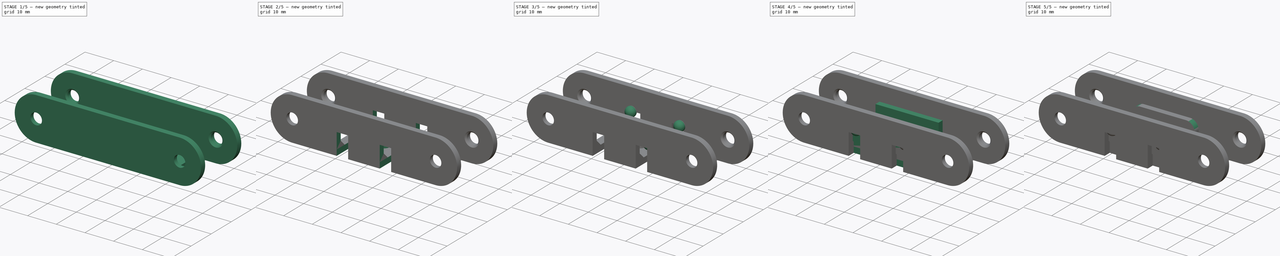
[diagram: build sequence overview — one tinted view per stage of 5, left to right]
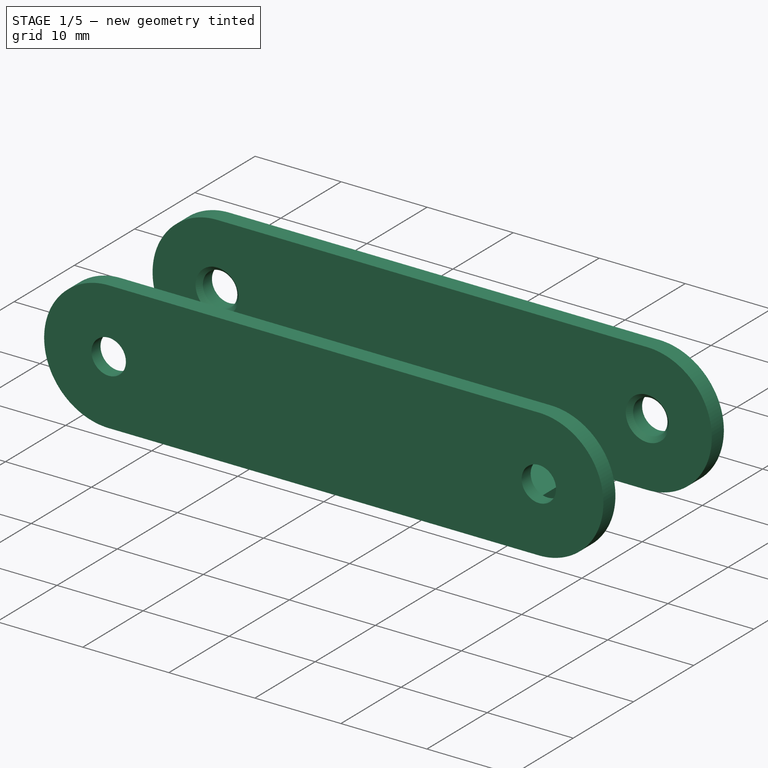
[diagram: stage 1 of 5 — iso view after this stage's code; geometry added in this stage tinted green]
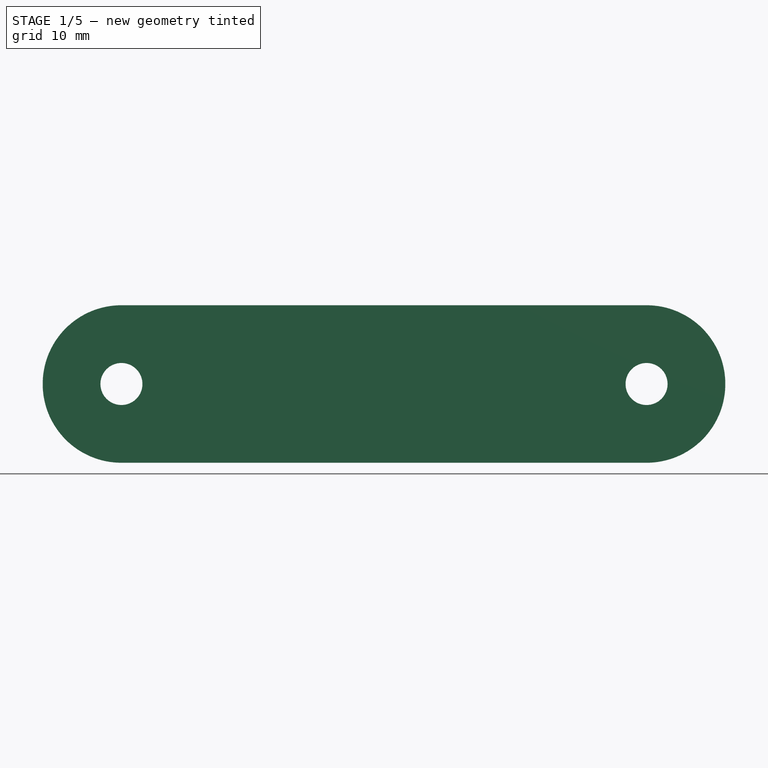
[diagram: stage 1 of 5 — front view after this stage's code; geometry added in this stage tinted green]
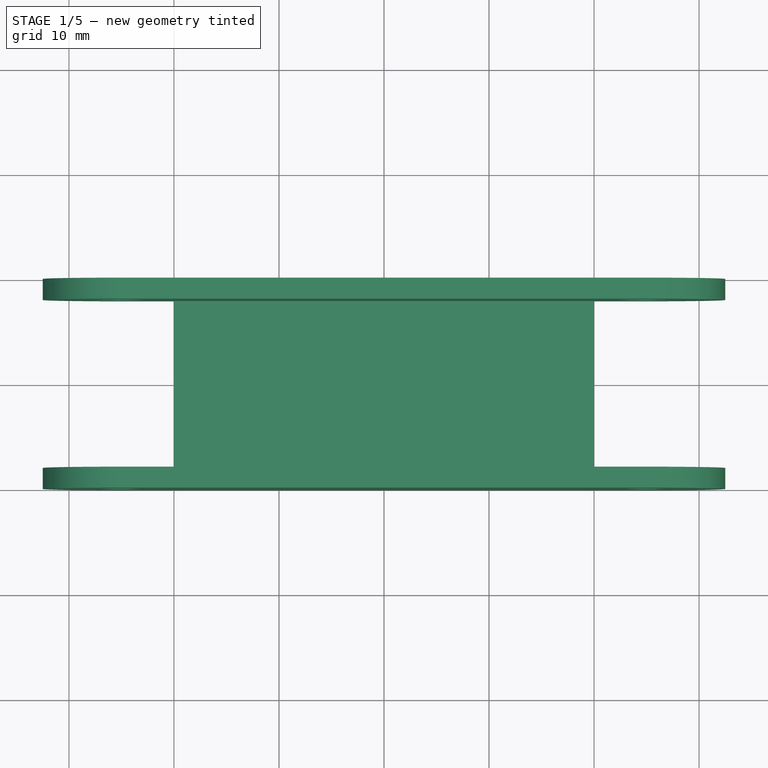
[diagram: stage 1 of 5 — top view after this stage's code; geometry added in this stage tinted green]
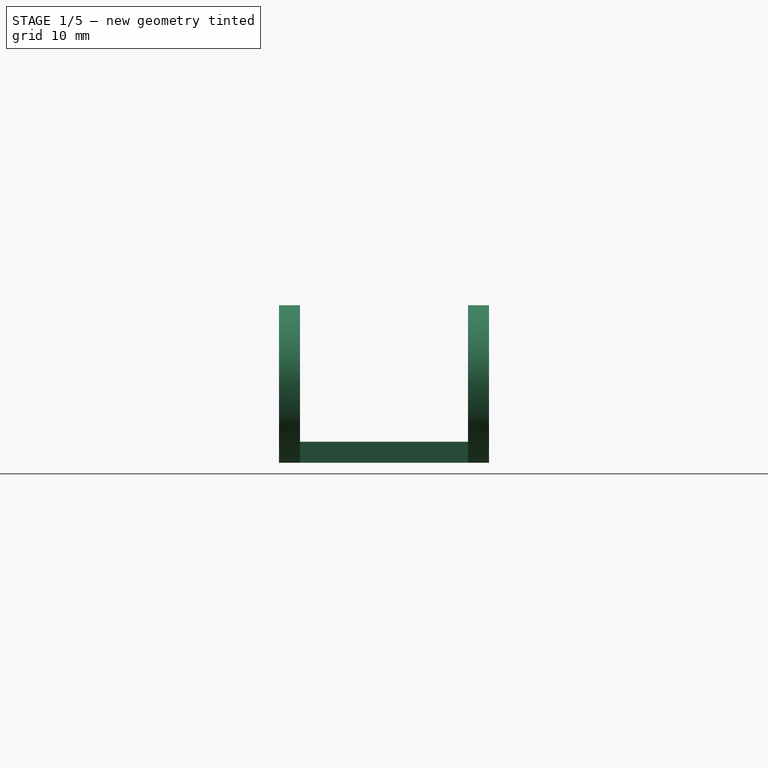
[diagram: stage 1 of 5 — right view after this stage's code; geometry added in this stage tinted green]
FCSTD DOCUMENT  (FreeCAD 0.16R6138 (Git))
Label: pentographeV2
License: All rights reserved
LicenseURL: http://fr.wikipedia.org/wiki/<copyright redacted>
objects: Sketcher::SketchObject×9, PartDesign::Pad×5, PartDesign::Pocket×4, Part::Sphere×4, Part::MultiFuse×4, PartDesign::Chamfer×3, PartDesign::Fillet×2, App::DocumentObjectGroup×2
note: 40 computed .brp shape members not serialized (recipe doc carries the construction recipe); baked Part::Feature solids carry a one-line shape summary decoded from their .brp

FEATURE [Sketcher::SketchObject] Sketch
  sketch-geometry (4):
    g0: LineSegment StartX=-20 StartY=10 StartZ=0 EndX=20 EndY=10 EndZ=0
    g1: LineSegment StartX=20 StartY=10 StartZ=0 EndX=20 EndY=-10 EndZ=0
    g2: LineSegment StartX=20 StartY=-10 StartZ=0 EndX=-20 EndY=-10 EndZ=0
    g3: LineSegment StartX=-20 StartY=-10 StartZ=0 EndX=-20 EndY=10 EndZ=0
  constraints (12):
    c: Coincident(g0,g1)
    c: Coincident(g1,g2)
    c: Coincident(g2,g3)
    c: Coincident(g3,g0)
    c: Horizontal(g0)
    c: Horizontal(g2)
    c: Vertical(g1)
    c: Vertical(g3)
    c: Symmetric(g0,g1,g-1)
    c: Symmetric(g0,g0,g-2)
    c: Distance(g0) = 40
    c: Distance(g1) = 20
FEATURE [PartDesign::Pad] Pad  label="Pento001"
  Length = 2
  Length2 = 100
  Sketch = -> Sketch
  Type = 0
FEATURE [Sketcher::SketchObject] Sketch001
  Placement = pos=(0,-10,0) rot=(1,0,0;1.5708rad)
  Support = -> Pad [Face3]
  sketch-geometry (6):
    g0: ArcOfCircle CenterX=-25 CenterY=7.5 CenterZ=0 NormalX=0 NormalY=0 NormalZ=1 Radius=7.5 StartAngle=1.5708 EndAngle=4.71239
    g1: ArcOfCircle CenterX=25 CenterY=7.5 CenterZ=0 NormalX=0 NormalY=0 NormalZ=1 Radius=7.5 StartAngle=4.71239 EndAngle=7.85398
    g2: LineSegment StartX=-25 StartY=0 StartZ=0 EndX=25 EndY=0 EndZ=0
    g3: LineSegment StartX=-25 StartY=15 StartZ=0 EndX=25 EndY=15 EndZ=0
    g4: Circle CenterX=-25 CenterY=7.5 CenterZ=0 NormalX=0 NormalY=0 NormalZ=1 Radius=2
    g5: Circle CenterX=25 CenterY=7.5 CenterZ=0 NormalX=0 NormalY=0 NormalZ=1 Radius=2
  constraints (14):
    c: Tangent(g0,g3) = 1.5708
    c: Tangent(g0,g2) = -1.5708
    c: Tangent(g2,g1) = -1.5708
    c: Tangent(g3,g1) = 1.5708
    c: Horizontal(g2)
    c: Equal(g0,g1)
    c: PointOnObject(g0,g-1)
    c: Symmetric(g0,g1,g-2)
    c: Radius(g1) = 7.5
    c: Distance(g3) = 50
    c: Coincident(g5,g1)
    c: Coincident(g4,g0)
    c: Radius(g5) = 2
    c: Equal(g5,g4)
FEATURE [PartDesign::Pad] Pad001  label="Pad005"
  Length = 2
  Length2 = 100
  Reversed = true
  Sketch = -> Sketch001
  Type = 0
FEATURE [Sketcher::SketchObject] Sketch002
  Placement = pos=(0,10,0) rot=(0,0.707107,0.707107;3.14159rad)
  Support = -> Pad001 [Face1]
  sketch-geometry (6):
    g0: ArcOfCircle CenterX=-25 CenterY=7.5 CenterZ=0 NormalX=0 NormalY=0 NormalZ=1 Radius=7.5 StartAngle=1.5708 EndAngle=4.71239
    g1: ArcOfCircle CenterX=25 CenterY=7.5 CenterZ=0 NormalX=0 NormalY=0 NormalZ=1 Radius=7.5 StartAngle=4.71239 EndAngle=7.85398
    g2: LineSegment StartX=-25 StartY=0 StartZ=0 EndX=25 EndY=0 EndZ=0
    g3: LineSegment StartX=-25 StartY=15 StartZ=0 EndX=25 EndY=15 EndZ=0
    g4: Circle CenterX=-25 CenterY=7.5 CenterZ=0 NormalX=0 NormalY=0 NormalZ=1 Radius=2
    g5: Circle CenterX=25 CenterY=7.5 CenterZ=0 NormalX=0 NormalY=0 NormalZ=1 Radius=2
  constraints (14):
    c: Tangent(g0,g3) = 1.5708
    c: Tangent(g0,g2) = -1.5708
    c: Tangent(g2,g1) = -1.5708
    c: Tangent(g3,g1) = 1.5708
    c: Horizontal(g2)
    c: Equal(g0,g1)
    c: PointOnObject(g1,g-1)
    c: Radius(g0) = 7.5
    c: Symmetric(g1,g0,g-2)
    c: Distance(g3) = 50
    c: Coincident(g5,g1)
    c: Coincident(g4,g0)
    c: Radius(g5) = 2
    c: Equal(g5,g4)
FEATURE [PartDesign::Pad] Pad002  label="Pento002"
  Length = 2
  Length2 = 100
  Reversed = true
  Sketch = -> Sketch002
  Type = 0
FEATURE [PartDesign::Chamfer] Chamfer  label="Pento003"
  Base = -> Pad002 [Edge37,Edge36,Edge46,Edge45]
  Size = 0.5
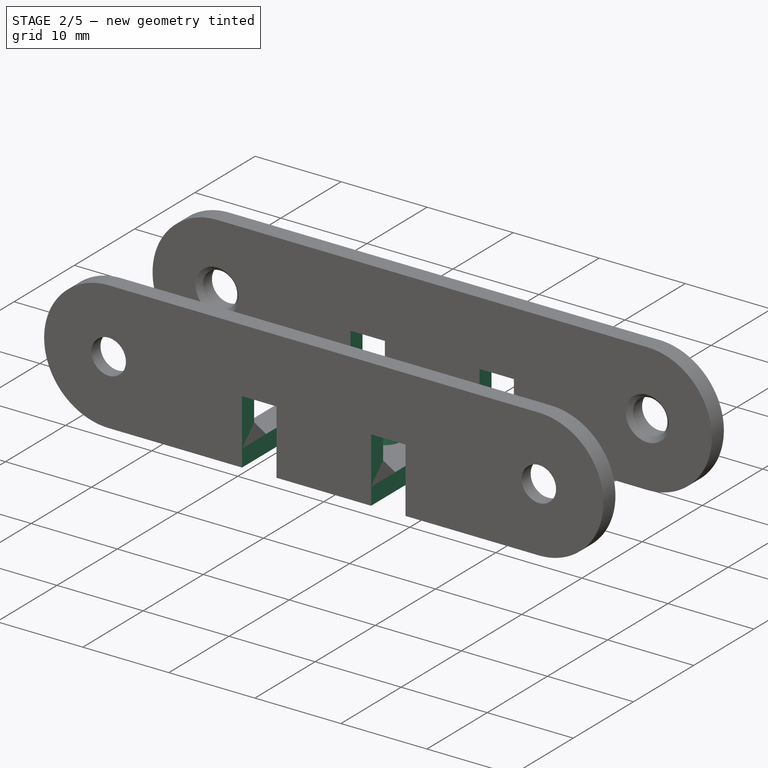
[diagram: stage 2 of 5 — iso view after this stage's code; geometry added in this stage tinted green]
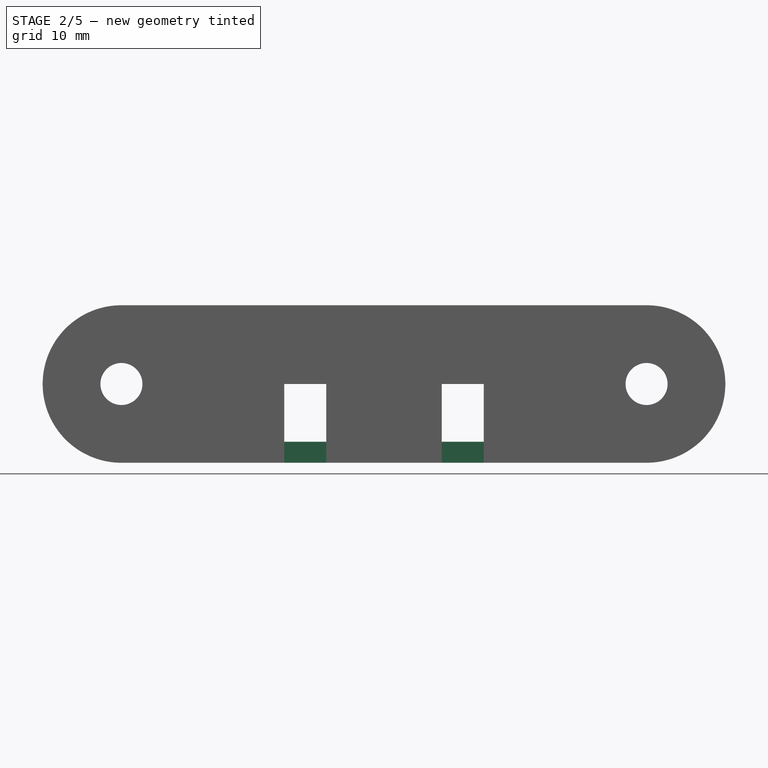
[diagram: stage 2 of 5 — front view after this stage's code; geometry added in this stage tinted green]
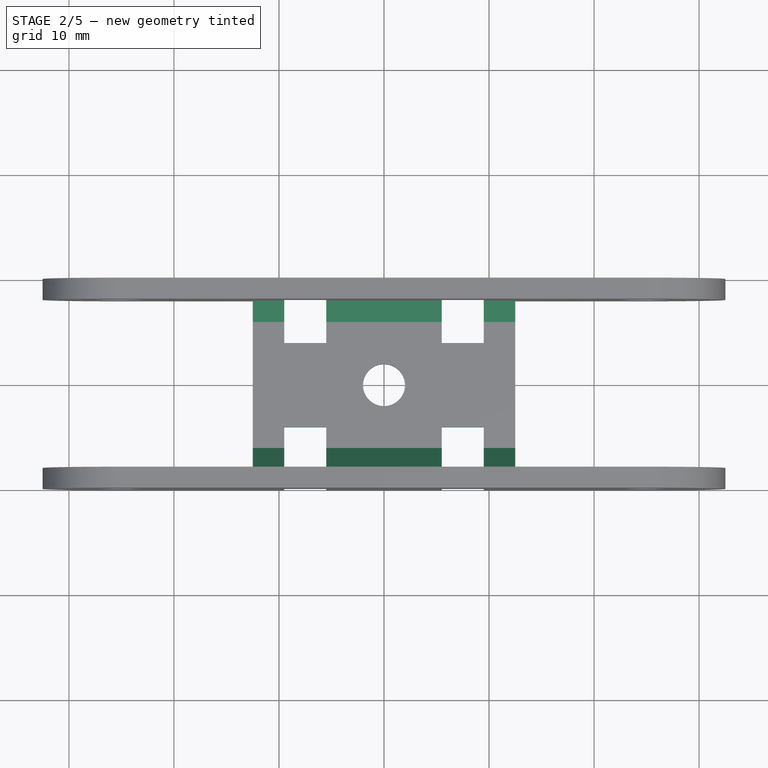
[diagram: stage 2 of 5 — top view after this stage's code; geometry added in this stage tinted green]
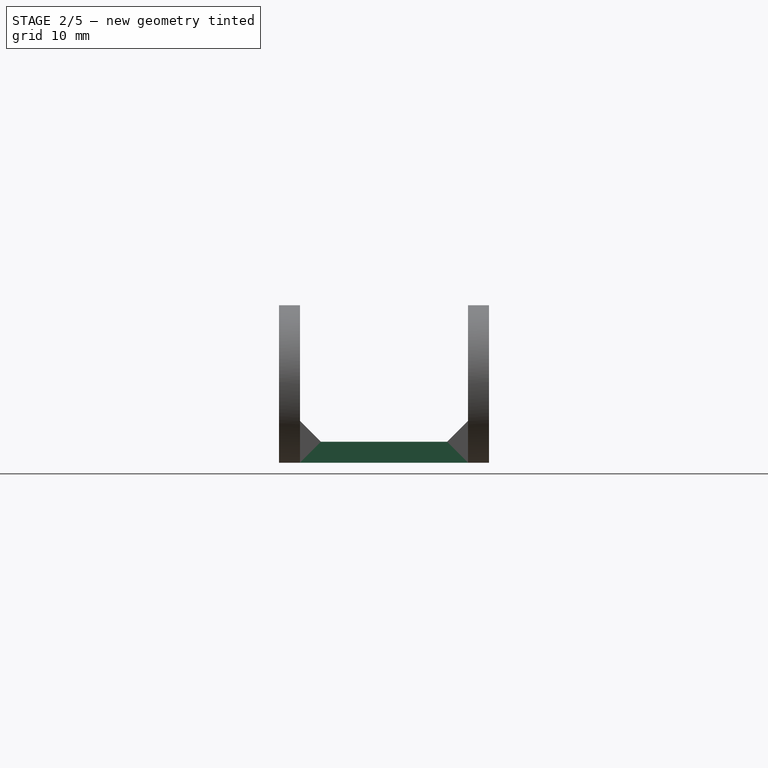
[diagram: stage 2 of 5 — right view after this stage's code; geometry added in this stage tinted green]
FEATURE [PartDesign::Chamfer] Chamfer001  label="Pento004"
  Base = -> Chamfer [Edge22,Edge20]
  Size = 1.99
FEATURE [PartDesign::Chamfer] Chamfer002  label="Pento005"
  Base = -> Chamfer001 [Edge4,Edge21]
  Size = 2
FEATURE [Sketcher::SketchObject] Sketch003
  ExternalGeometry = -> [Chamfer002]
  Placement = pos=(0,0,0) rot=(1,0,0;3.14159rad)
  Support = -> Chamfer002 [Face17]
  sketch-geometry (12):
    g0: LineSegment [constr] StartX=-32.5 StartY=15 StartZ=0 EndX=32.5 EndY=15 EndZ=0
    g1: LineSegment [constr] StartX=32.5 StartY=15 StartZ=0 EndX=32.5 EndY=-15 EndZ=0
    g2: LineSegment [constr] StartX=32.5 StartY=-15 StartZ=0 EndX=-32.5 EndY=-15 EndZ=0
    g3: LineSegment [constr] StartX=-32.5 StartY=-15 StartZ=0 EndX=-32.5 EndY=15 EndZ=0
    g4: LineSegment StartX=-32.5 StartY=8 StartZ=0 EndX=-12.5 EndY=8 EndZ=0
    g5: LineSegment StartX=-12.5 StartY=8 StartZ=0 EndX=-12.5 EndY=-8 EndZ=0
    g6: LineSegment StartX=-12.5 StartY=-8 StartZ=0 EndX=-32.5 EndY=-8 EndZ=0
    g7: LineSegment StartX=-32.5 StartY=-8 StartZ=0 EndX=-32.5 EndY=8 EndZ=0
    g8: LineSegment StartX=32.5 StartY=8 StartZ=0 EndX=12.5 EndY=8 EndZ=0
    g9: LineSegment StartX=12.5 StartY=8 StartZ=0 EndX=12.5 EndY=-8 EndZ=0
    g10: LineSegment StartX=12.5 StartY=-8 StartZ=0 EndX=32.5 EndY=-8 EndZ=0
    g11: LineSegment StartX=32.5 StartY=-8 StartZ=0 EndX=32.5 EndY=8 EndZ=0
  constraints (36):
    c: Coincident(g0,g1)
    c: Coincident(g1,g2)
    c: Coincident(g2,g3)
    c: Coincident(g3,g0)
    c: Horizontal(g0)
    c: Horizontal(g2)
    c: Vertical(g1)
    c: Vertical(g3)
    c: Symmetric(g0,g2,g-1)
    c: Symmetric(g0,g0,g-2)
    c: Distance(g0) = 65
    c: Coincident(g4,g5)
    c: Coincident(g5,g6)
    c: Coincident(g6,g7)
    c: Coincident(g7,g4)
    c: Horizontal(g4)
    c: Horizontal(g6)
    c: Vertical(g5)
    c: Vertical(g7)
    c: Coincident(g8,g9)
    c: Coincident(g9,g10)
    c: Coincident(g10,g11)
    c: Coincident(g11,g8)
    c: Horizontal(g8)
    c: Horizontal(g10)
    c: Vertical(g9)
    c: Vertical(g11)
    c: PointOnObject(g5,g-4)
    c: PointOnObject(g9,g-4)
    c: PointOnObject(g8,g-3)
    c: PointOnObject(g4,g-3)
    c: PointOnObject(g4,g3)
    c: PointOnObject(g8,g1)
    c: Equal(g8,g4)
    c: Distance(g8,g8) = 20
    c: Distance(g1) = 30
FEATURE [PartDesign::Pocket] Pocket  label="Pento006"
  Length = 5
  Sketch = -> Sketch003
  Type = 0
FEATURE [App::DocumentObjectGroup] Groupe001  label="GR_Agraphe"
  Group = -> [Pad003,Fusion003,Fillet,Fillet001,Pocket001]
FEATURE [Sketcher::SketchObject] Sketch007
  Placement = pos=(0,0,2) rot=(0,0,1;0rad)
  Support = -> Pocket [Face23]
  sketch-geometry (1):
    g0: Circle CenterX=0 CenterY=0 CenterZ=0 NormalX=0 NormalY=0 NormalZ=1 Radius=2
  constraints (3):
    c: PointOnObject(g0,g-1)
    c: PointOnObject(g0,g-2)
    c: Radius(g0) = 2
FEATURE [PartDesign::Pocket] Pocket002  label="Pento007"
  Length = 5
  Sketch = -> Sketch007
  Type = 0
FEATURE [Sketcher::SketchObject] Sketch008
  ExternalGeometry = -> [Pocket002]
  Placement = pos=(0,0,0) rot=(1,0,0;3.14159rad)
  Support = -> Pocket002 [Face20]
  sketch-geometry (16):
    g0: LineSegment StartX=-9.5 StartY=12 StartZ=0 EndX=-5.5 EndY=12 EndZ=0
    g1: LineSegment StartX=-5.5 StartY=12 StartZ=0 EndX=-5.5 EndY=4 EndZ=0
    g2: LineSegment StartX=-5.5 StartY=4 StartZ=0 EndX=-9.5 EndY=4 EndZ=0
    g3: LineSegment StartX=-9.5 StartY=4 StartZ=0 EndX=-9.5 EndY=12 EndZ=0
    g4: LineSegment StartX=9.5 StartY=12 StartZ=0 EndX=5.5 EndY=12 EndZ=0
    g5: LineSegment StartX=5.5 StartY=12 StartZ=0 EndX=5.5 EndY=4 EndZ=0
    g6: LineSegment StartX=5.5 StartY=4 StartZ=0 EndX=9.5 EndY=4 EndZ=0
    g7: LineSegment StartX=9.5 StartY=4 StartZ=0 EndX=9.5 EndY=12 EndZ=0
    g8: LineSegment StartX=9.5 StartY=-12 StartZ=0 EndX=5.5 EndY=-12 EndZ=0
    g9: LineSegment StartX=5.5 StartY=-12 StartZ=0 EndX=5.5 EndY=-4 EndZ=0
    g10: LineSegment StartX=5.5 StartY=-4 StartZ=0 EndX=9.5 EndY=-4 EndZ=0
    g11: LineSegment StartX=9.5 StartY=-4 StartZ=0 EndX=9.5 EndY=-12 EndZ=0
    g12: LineSegment StartX=-9.5 StartY=-12 StartZ=0 EndX=-5.5 EndY=-12 EndZ=0
    g13: LineSegment StartX=-5.5 StartY=-12 StartZ=0 EndX=-5.5 EndY=-4 EndZ=0
    g14: LineSegment StartX=-5.5 StartY=-4 StartZ=0 EndX=-9.5 EndY=-4 EndZ=0
    g15: LineSegment StartX=-9.5 StartY=-4 StartZ=0 EndX=-9.5 EndY=-12 EndZ=0
  constraints (48):
    c: Coincident(g0,g1)
    c: Coincident(g1,g2)
    c: Coincident(g2,g3)
    c: Coincident(g3,g0)
    c: Horizontal(g0)
    c: Horizontal(g2)
    c: Vertical(g1)
    c: Vertical(g3)
    c: Coincident(g4,g5)
    c: Coincident(g5,g6)
    c: Coincident(g6,g7)
    c: Coincident(g7,g4)
    c: Horizontal(g4)
    c: Horizontal(g6)
    c: Vertical(g5)
    c: Vertical(g7)
    c: Coincident(g8,g9)
    c: Coincident(g9,g10)
    c: Coincident(g10,g11)
    c: Coincident(g11,g8)
    c: Horizontal(g8)
    c: Horizontal(g10)
    c: Vertical(g9)
    c: Vertical(g11)
    c: Coincident(g12,g13)
    c: Coincident(g13,g14)
    c: Coincident(g14,g15)
    c: Coincident(g15,g12)
    c: Horizontal(g12)
    c: Horizontal(g14)
    c: Vertical(g13)
    c: Vertical(g15)
    c: Equal(g4,g0)
    c: Equal(g0,g14)
    c: Equal(g14,g10)
    c: PointOnObject(g2,g15)
    c: PointOnObject(g4,g0)
    c: PointOnObject(g5,g2)
    c: PointOnObject(g5,g9)
    c: Symmetric(g0,g4,g-2)
    c: Distance(g6,g-4) = 3
    c: Distance(g4) = 4
    c: Equal(g3,g15)
    c: Symmetric(g14,g2,g-1)
    c: PointOnObject(g9,g14)
    c: PointOnObject(g12,g8)
    c: DistanceY(g-1,g2) = 4
    c: Distance(g15) = 8
FEATURE [PartDesign::Pocket] Pocket003  label="Pento008"
  Length = 7.5
  Sketch = -> Sketch008
  Type = 0
FEATURE [App::DocumentObjectGroup] Groupe  label="GR_Pento"
  Group = -> [Pad,Pad001,Pad002,Chamfer,Chamfer001,Chamfer002,Pocket,Pocket002,Pocket003]
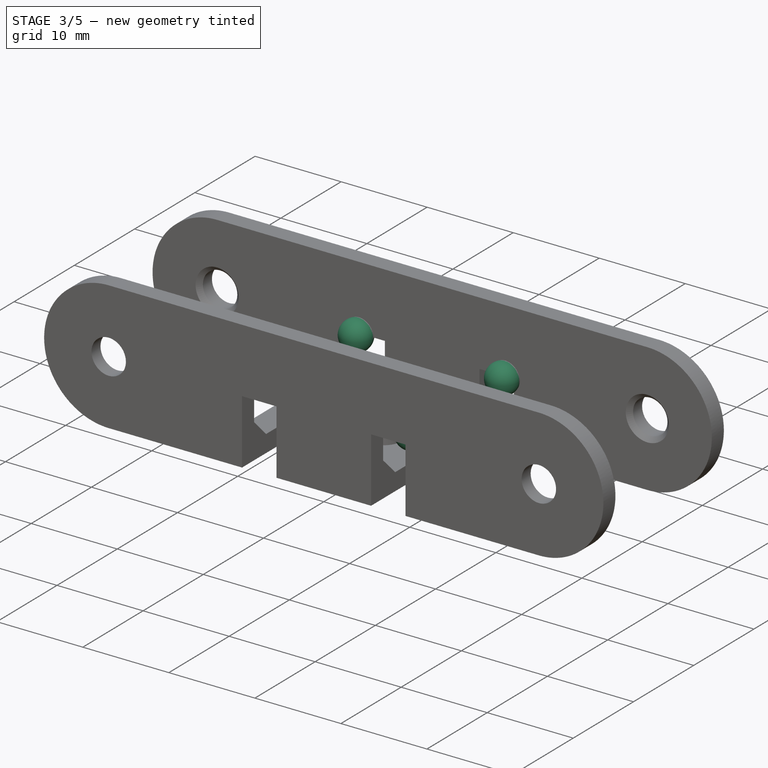
[diagram: stage 3 of 5 — iso view after this stage's code; geometry added in this stage tinted green]
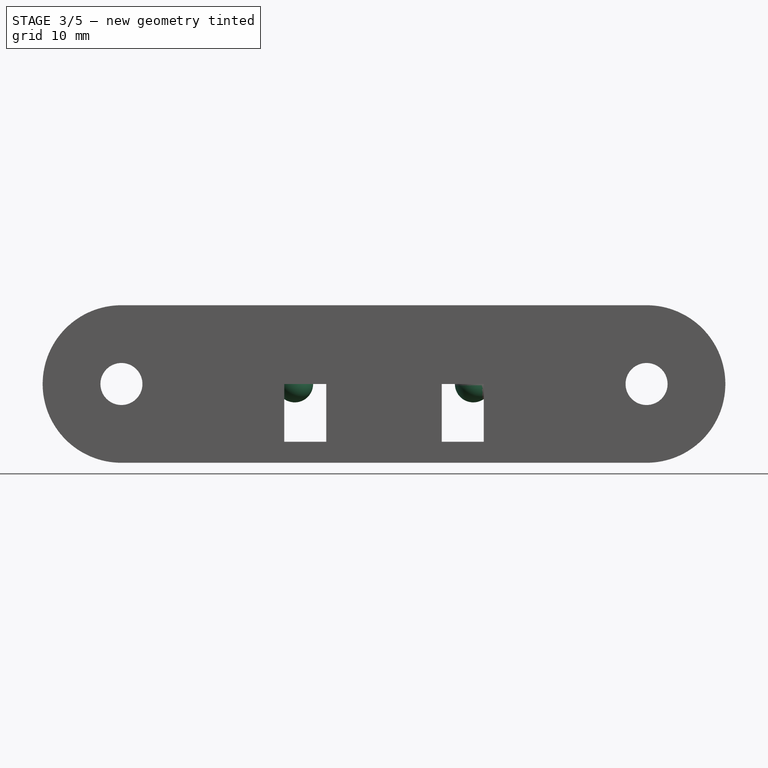
[diagram: stage 3 of 5 — front view after this stage's code; geometry added in this stage tinted green]
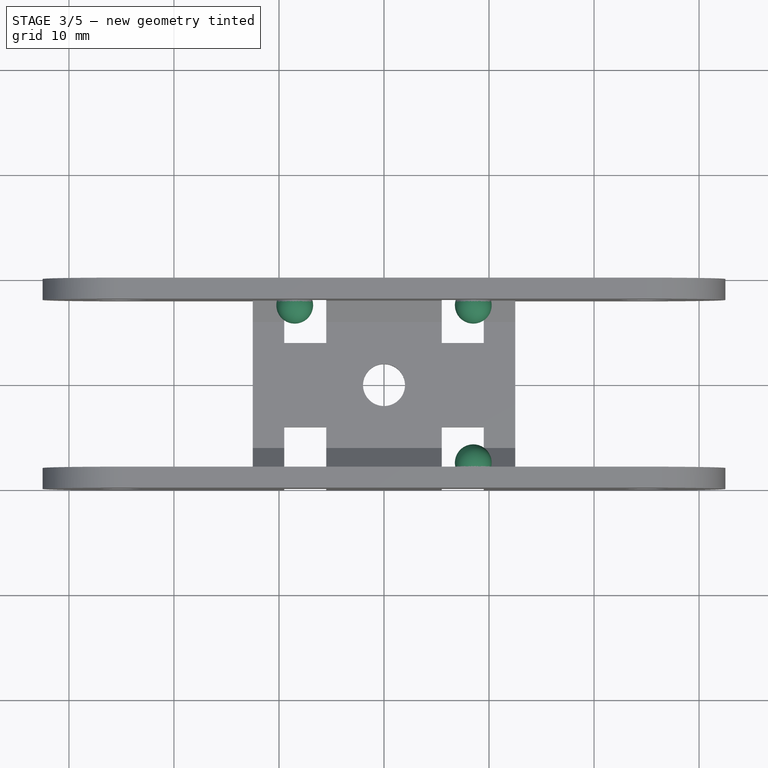
[diagram: stage 3 of 5 — top view after this stage's code; geometry added in this stage tinted green]
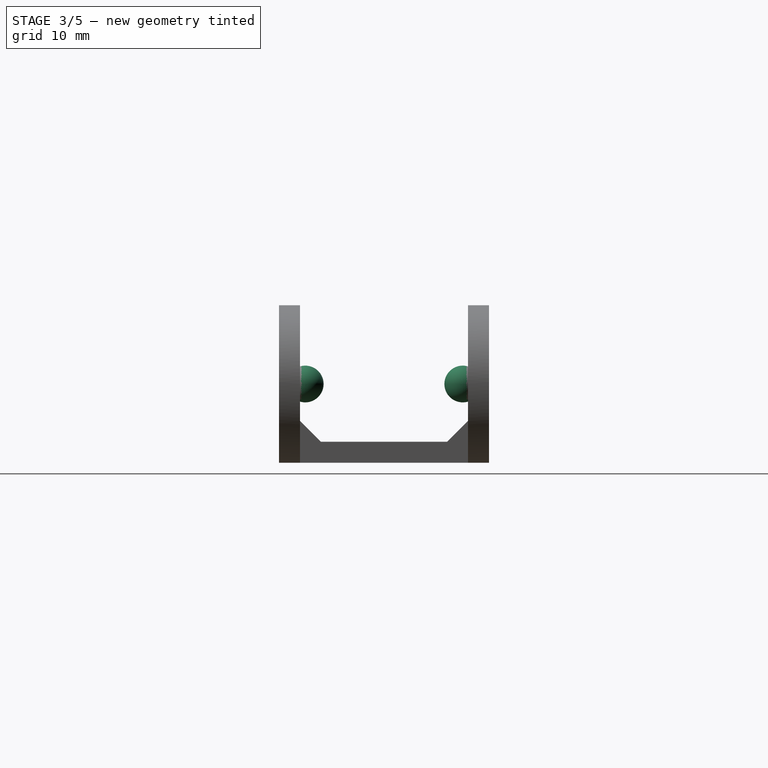
[diagram: stage 3 of 5 — right view after this stage's code; geometry added in this stage tinted green]
FEATURE [Part::Sphere] Sphere001  label="Sphère001"
  Angle1 = -90
  Angle2 = 90
  Angle3 = 360
  Placement = pos=(8.5,-7.5,7.5) rot=(0,0,1;0rad)
  Radius = 1.75
FEATURE [Part::Sphere] Sphere002  label="Sphère002"
  Angle1 = -90
  Angle2 = 90
  Angle3 = 360
  Placement = pos=(8.5,7.5,7.5) rot=(0,0,1;0rad)
  Radius = 1.75
FEATURE [Part::Sphere] Sphere003  label="Sphère003"
  Angle1 = -90
  Angle2 = 90
  Angle3 = 360
  Placement = pos=(-8.5,7.5,7.5) rot=(0,0,1;0rad)
  Radius = 1.75
FEATURE [Part::MultiFuse] Fusion002
  Shapes = -> [Sphere002,Sphere003]
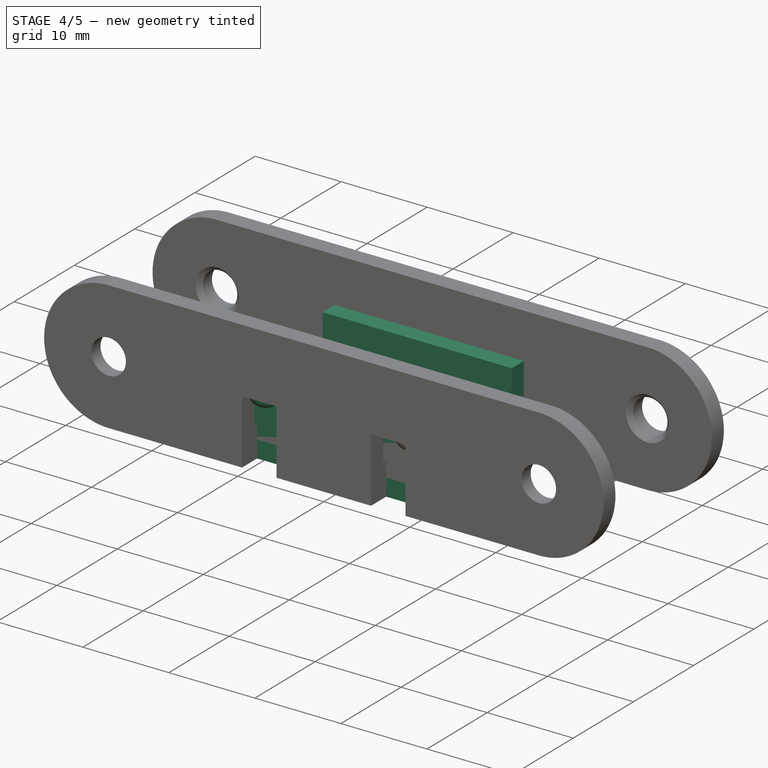
[diagram: stage 4 of 5 — iso view after this stage's code; geometry added in this stage tinted green]
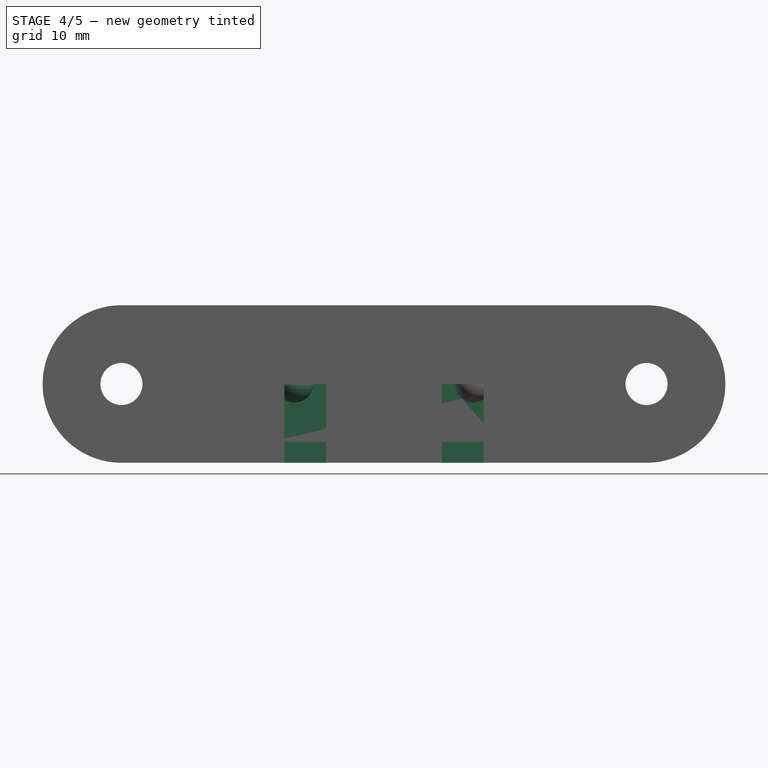
[diagram: stage 4 of 5 — front view after this stage's code; geometry added in this stage tinted green]
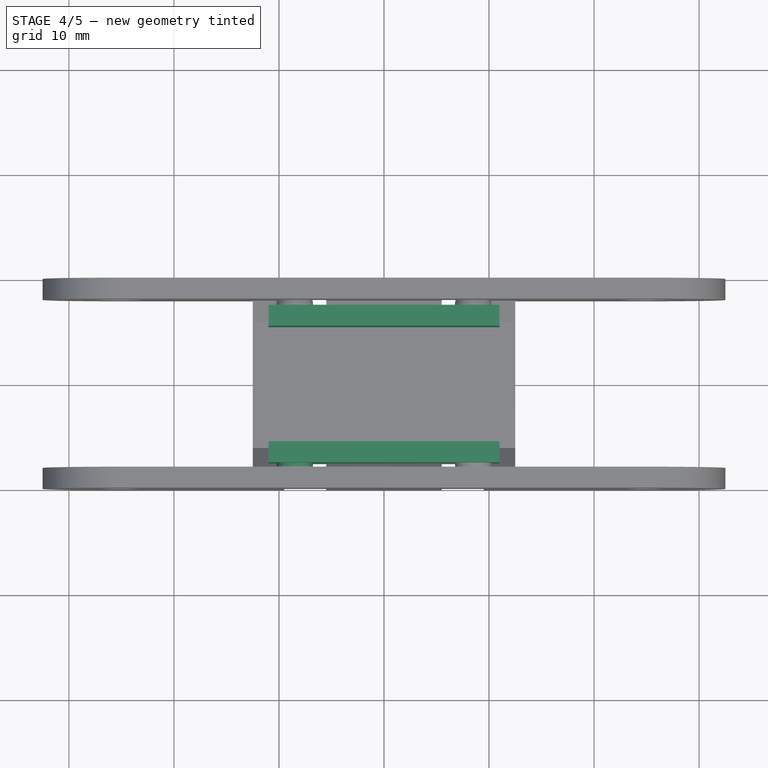
[diagram: stage 4 of 5 — top view after this stage's code; geometry added in this stage tinted green]
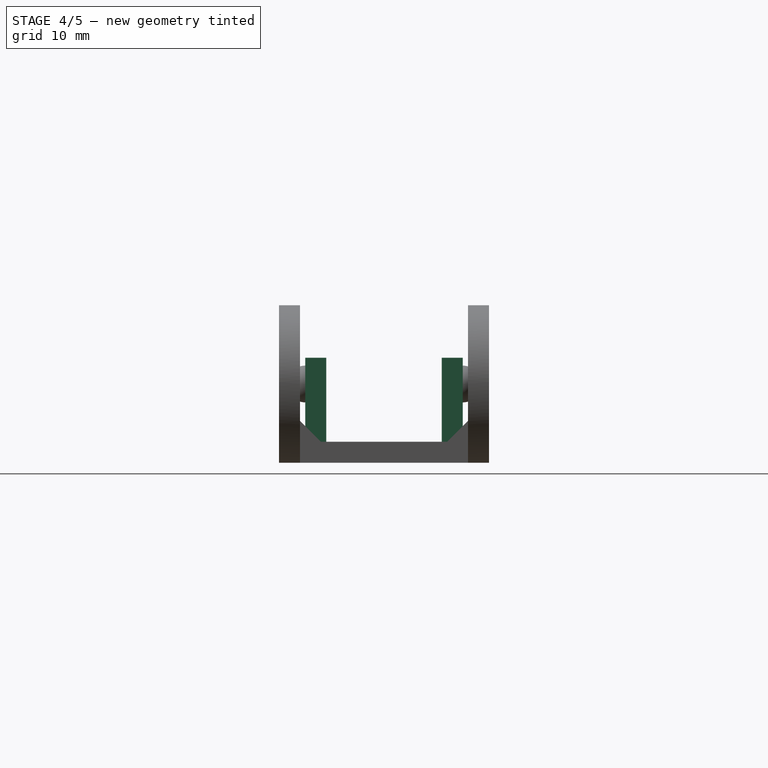
[diagram: stage 4 of 5 — right view after this stage's code; geometry added in this stage tinted green]
FEATURE [Sketcher::SketchObject] Sketch004
  sketch-geometry (4):
    g0: LineSegment StartX=-11 StartY=7.5 StartZ=0 EndX=11 EndY=7.5 EndZ=0
    g1: LineSegment StartX=11 StartY=7.5 StartZ=0 EndX=11 EndY=-7.5 EndZ=0
    g2: LineSegment StartX=11 StartY=-7.5 StartZ=0 EndX=-11 EndY=-7.5 EndZ=0
    g3: LineSegment StartX=-11 StartY=-7.5 StartZ=0 EndX=-11 EndY=7.5 EndZ=0
  constraints (12):
    c: Coincident(g0,g1)
    c: Coincident(g1,g2)
    c: Coincident(g2,g3)
    c: Coincident(g3,g0)
    c: Horizontal(g0)
    c: Horizontal(g2)
    c: Vertical(g1)
    c: Vertical(g3)
    c: Symmetric(g0,g0,g-2)
    c: Symmetric(g0,g2,g-1)
    c: Distance(g1) = 15
    c: Distance(g0) = 22
FEATURE [PartDesign::Pad] Pad003  label="Agraphe001"
  Length = 2
  Length2 = 100
  Sketch = -> Sketch004
  Type = 0
FEATURE [Sketcher::SketchObject] Sketch005
  ExternalGeometry = -> [Pad003]
  Placement = pos=(0,0,2) rot=(0,0,1;0rad)
  Support = -> Pad003 [Face6]
  sketch-geometry (8):
    g0: LineSegment StartX=-11 StartY=7.5 StartZ=0 EndX=11 EndY=7.5 EndZ=0
    g1: LineSegment StartX=11 StartY=7.5 StartZ=0 EndX=11 EndY=5.5 EndZ=0
    g2: LineSegment StartX=11 StartY=5.5 StartZ=0 EndX=-11 EndY=5.5 EndZ=0
    g3: LineSegment StartX=-11 StartY=5.5 StartZ=0 EndX=-11 EndY=7.5 EndZ=0
    g4: LineSegment StartX=11 StartY=-7.5 StartZ=0 EndX=-11 EndY=-7.5 EndZ=0
    g5: LineSegment StartX=-11 StartY=-7.5 StartZ=0 EndX=-11 EndY=-5.5 EndZ=0
    g6: LineSegment StartX=-11 StartY=-5.5 StartZ=0 EndX=11 EndY=-5.5 EndZ=0
    g7: LineSegment StartX=11 StartY=-5.5 StartZ=0 EndX=11 EndY=-7.5 EndZ=0
  constraints (22):
    c: Coincident(g0,g1)
    c: Coincident(g1,g2)
    c: Coincident(g2,g3)
    c: Coincident(g3,g0)
    c: Horizontal(g0)
    c: Horizontal(g2)
    c: Vertical(g1)
    c: Vertical(g3)
    c: Coincident(g4,g5)
    c: Coincident(g5,g6)
    c: Coincident(g6,g7)
    c: Coincident(g7,g4)
    c: Horizontal(g4)
    c: Horizontal(g6)
    c: Vertical(g5)
    c: Vertical(g7)
    c: Coincident(g4,g-4)
    c: Coincident(g4,g-4)
    c: Coincident(g0,g-3)
    c: Coincident(g0,g-3)
    c: Equal(g1,g7)
    c: Distance(g1) = 2
FEATURE [PartDesign::Pad] Pad004  label="Agraphe002"
  Length = 8
  Length2 = 100
  Sketch = -> Sketch005
  Type = 0
FEATURE [Part::Sphere] Sphere  label="Sphère"
  Angle1 = -90
  Angle2 = 90
  Angle3 = 360
  Placement = pos=(-8.5,-7.5,7.5) rot=(0,0,1;0rad)
  Radius = 1.75
FEATURE [Part::MultiFuse] Fusion
  Shapes = -> [Sphere,Sphere001]
FEATURE [Part::MultiFuse] Fusion001  label="Agraphe003"
  Shapes = -> [Pad004,Fusion]
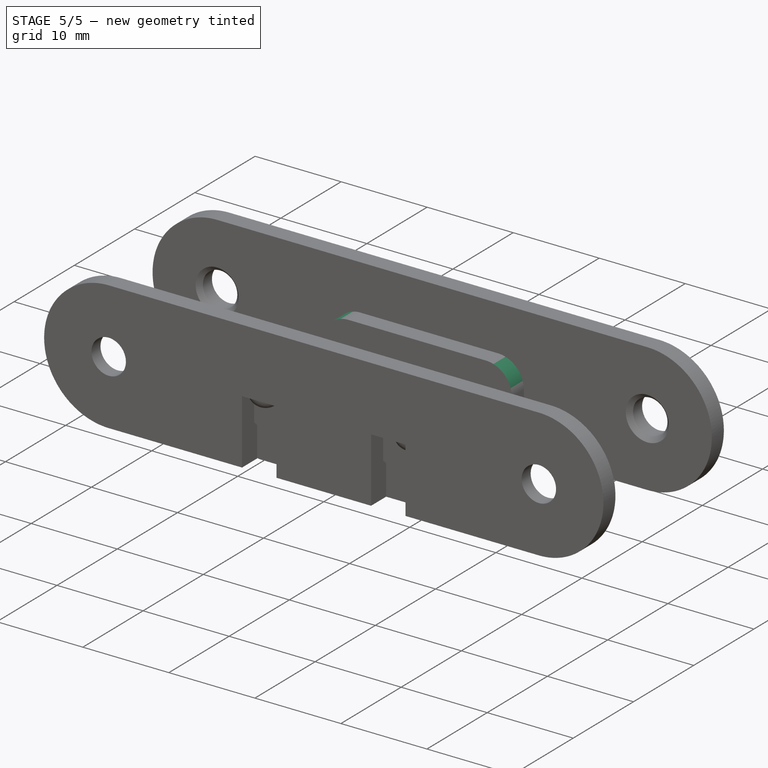
[diagram: stage 5 of 5 — iso view after this stage's code; geometry added in this stage tinted green]
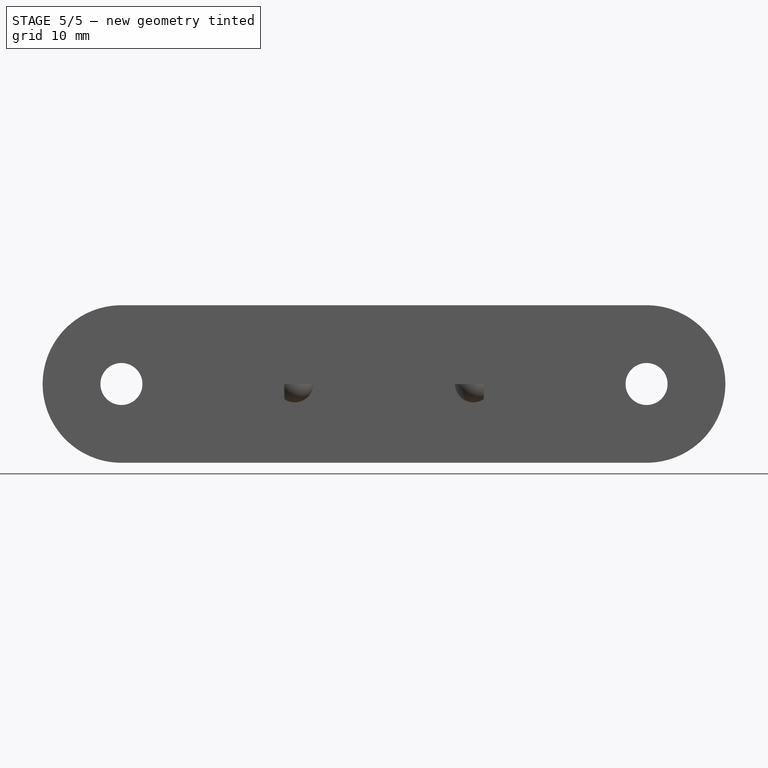
[diagram: stage 5 of 5 — front view after this stage's code; geometry added in this stage tinted green]
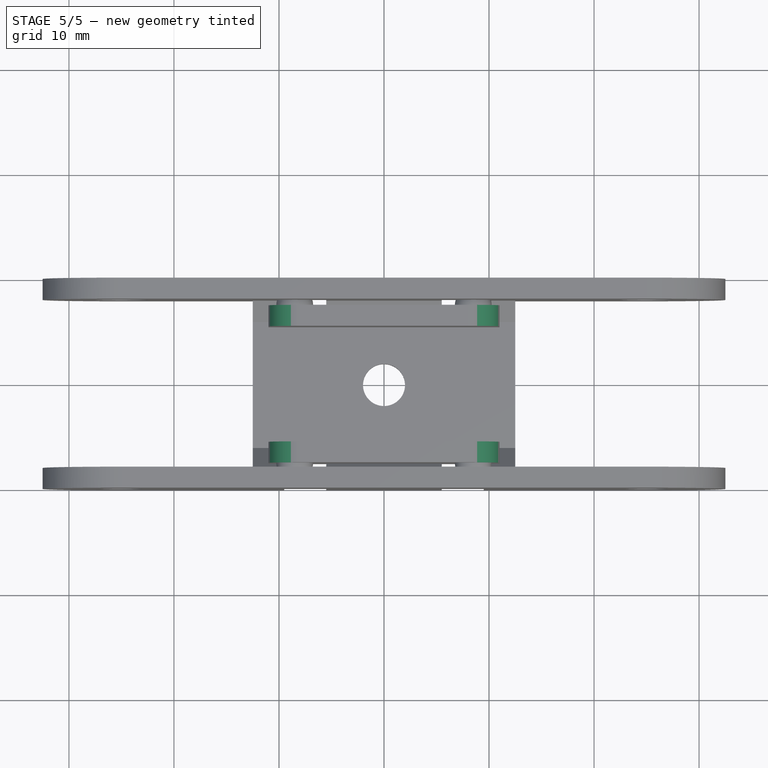
[diagram: stage 5 of 5 — top view after this stage's code; geometry added in this stage tinted green]
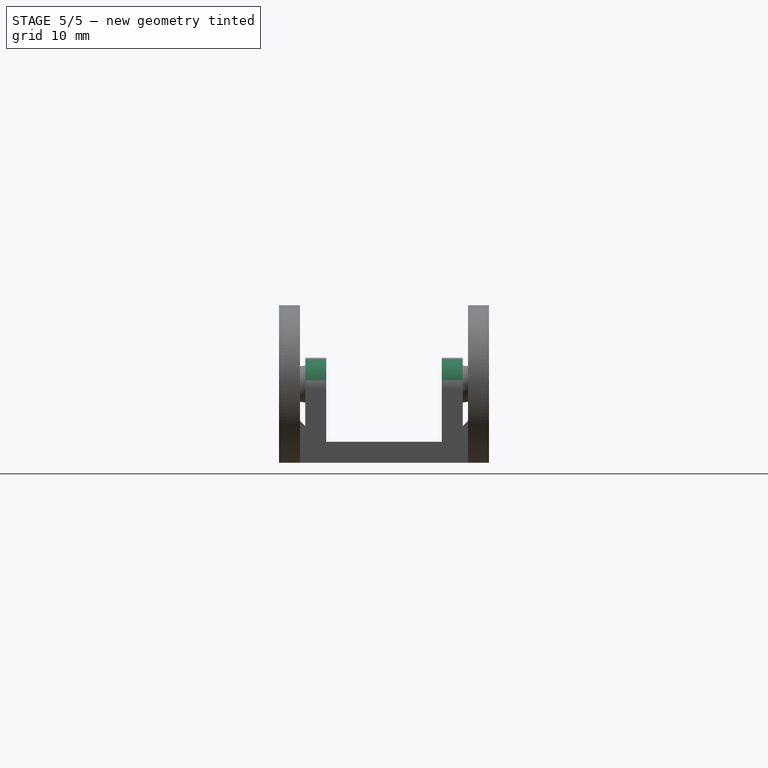
[diagram: stage 5 of 5 — right view after this stage's code; geometry added in this stage tinted green]
FEATURE [Part::MultiFuse] Fusion003  label="Agraphe004"
  Shapes = -> [Fusion001,Fusion002]
FEATURE [PartDesign::Fillet] Fillet  label="Agraphe005"
  Base = -> Fusion003 [Edge24,Edge29,Edge37,Edge40]
  Radius = 3
FEATURE [PartDesign::Fillet] Fillet001  label="Agraphe006"
  Base = -> Fillet [Edge34,Edge31]
  Radius = 1.99
FEATURE [Sketcher::SketchObject] Sketch006
  Placement = pos=(0,0,2) rot=(0,0,1;0rad)
  Support = -> Fillet001 [Face10]
  sketch-geometry (1):
    g0: Circle CenterX=0 CenterY=0 CenterZ=0 NormalX=0 NormalY=0 NormalZ=1 Radius=2
  constraints (3):
    c: PointOnObject(g0,g-1)
    c: PointOnObject(g0,g-2)
    c: Radius(g0) = 2
FEATURE [PartDesign::Pocket] Pocket001  label="Agraphe007"
  Length = 5
  Sketch = -> Sketch006
  Type = 1
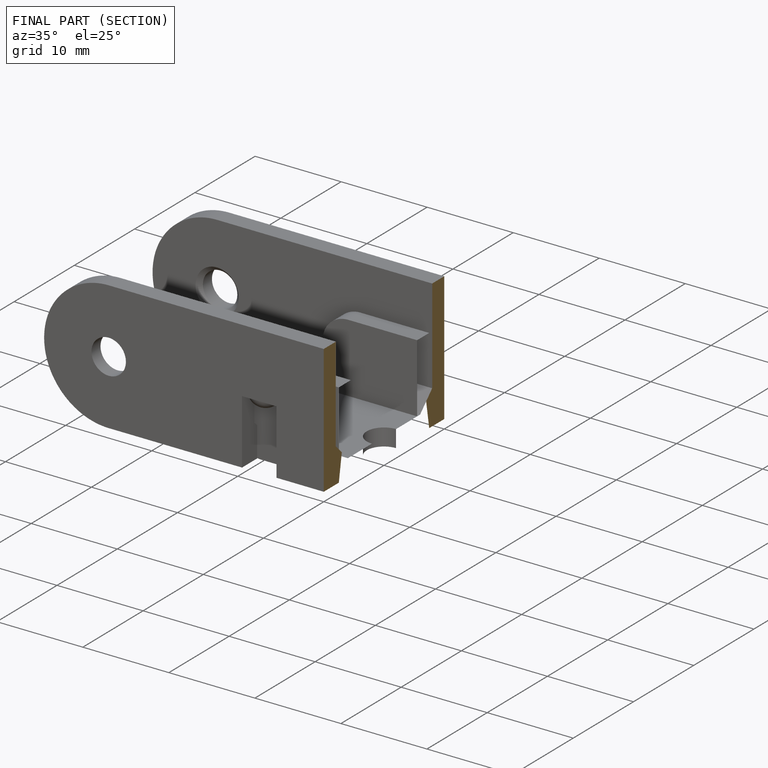
[diagram: finished part — half-section view (interior)]
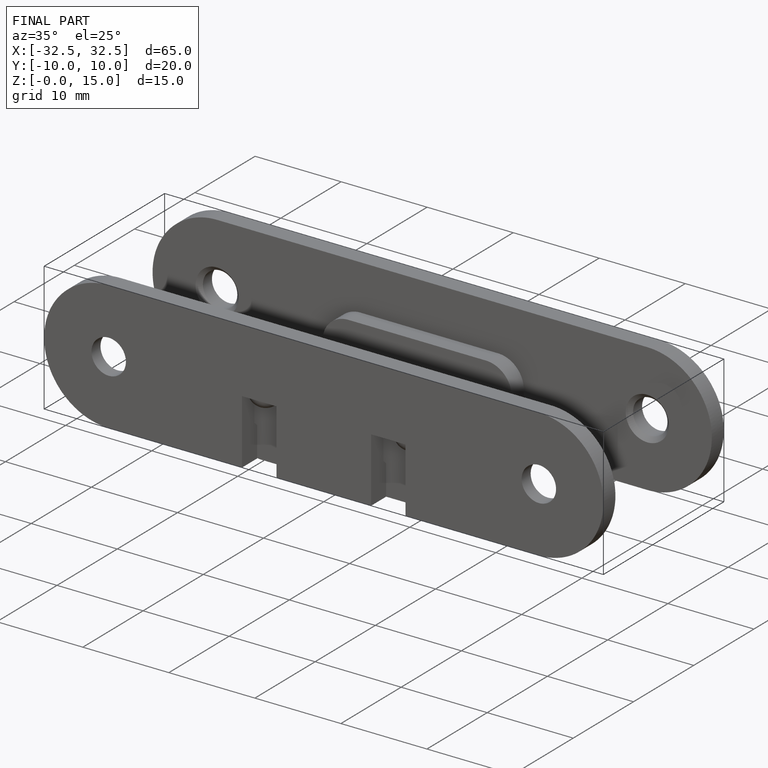
[diagram: finished part — iso view with bounding-box wireframe]
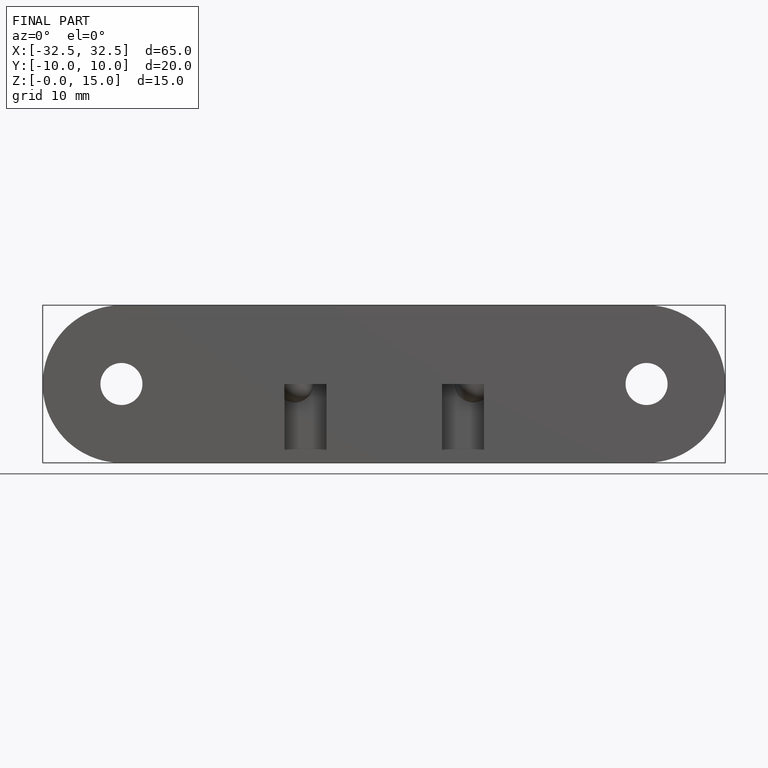
[diagram: finished part — front view with bounding-box wireframe]
